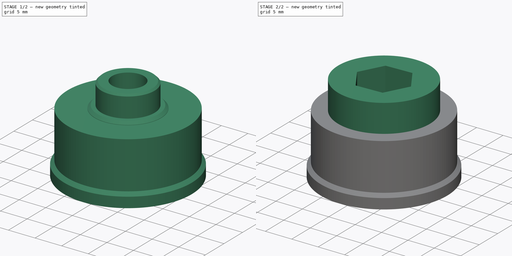
[diagram: build sequence overview — one tinted view per stage of 2, left to right]
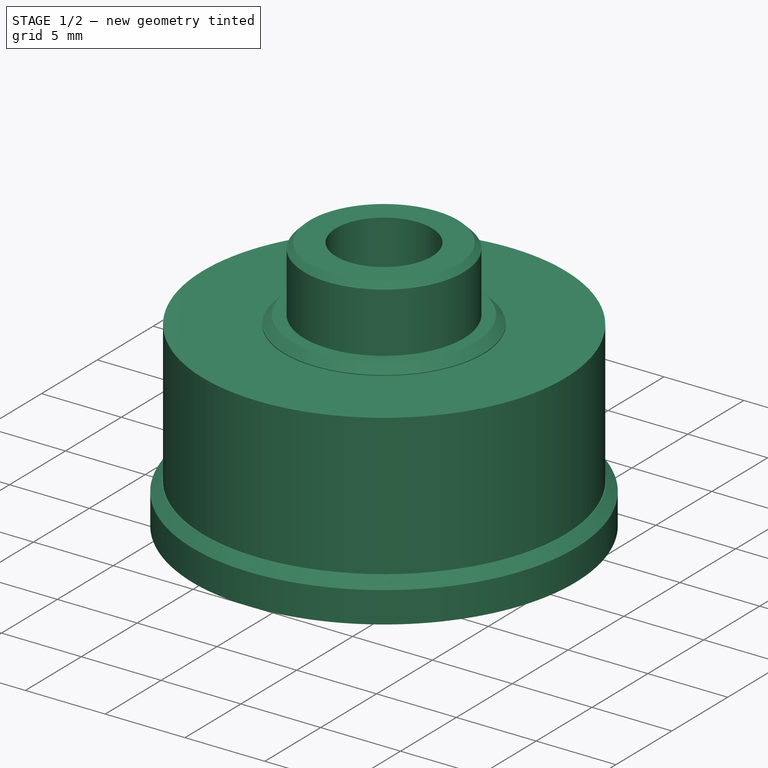
[diagram: stage 1 of 2 — iso view after this stage's code; geometry added in this stage tinted green]
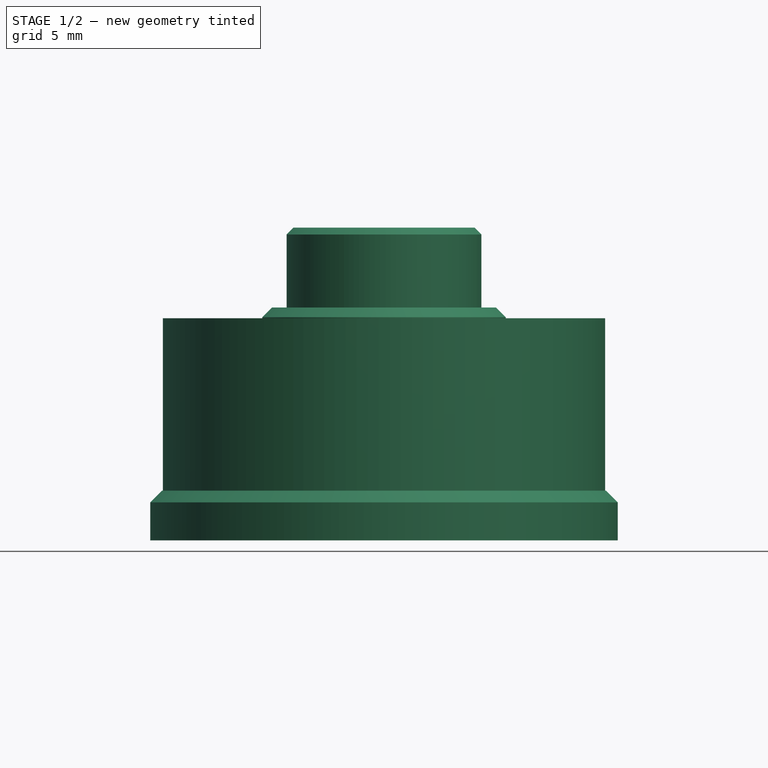
[diagram: stage 1 of 2 — front view after this stage's code; geometry added in this stage tinted green]
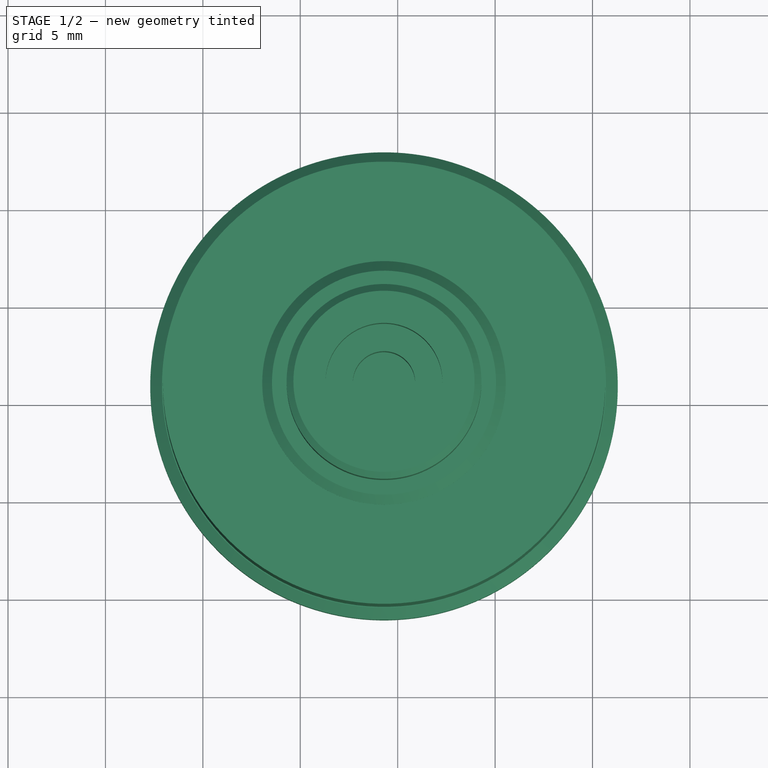
[diagram: stage 1 of 2 — top view after this stage's code; geometry added in this stage tinted green]
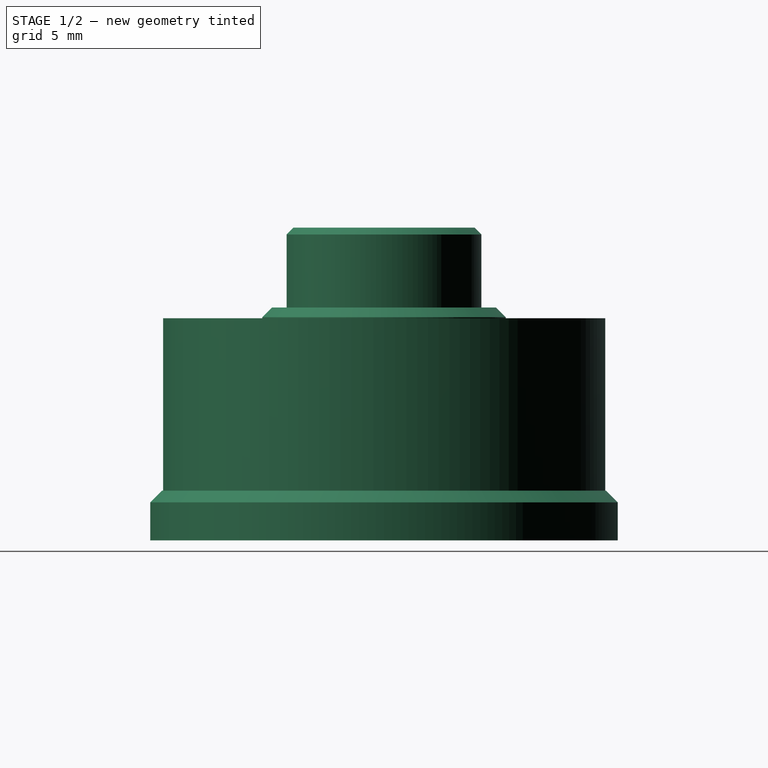
[diagram: stage 1 of 2 — right view after this stage's code; geometry added in this stage tinted green]
FCSTD DOCUMENT  (FreeCAD 0.20R29177 (Git))
Label: hexSocketPully
License: All rights reserved
LicenseURL: http://en.wikipedia.org/wiki/All_rights_reserved
objects: Sketcher::SketchObject×3, Part::Feature×2, PartDesign::Pad×2, Part::Refine×1, Spreadsheet::Sheet×1, PartDesign::FeatureBase×1, PartDesign::Pocket×1, PartDesign::Body×1
note: 14 computed .brp shape members not serialized (recipe doc carries the construction recipe); baked Part::Feature solids carry a one-line shape summary decoded from their .brp

FEATURE [Part::Feature] Pulley_1001
  shape: bbox 24 x 24 x 16.05 mm, 36164 faces, 0 solids (baked)
FEATURE [Part::Refine] Pulley_1001001
  Source = -> Pulley_1001
FEATURE [Spreadsheet::Sheet] Spreadsheet
  cells = A2=cx; B2(cx)=39.3; A3=cy; B3(cy)=80.95999999999999
FEATURE [Part::Feature] Pulley_1001001_solid  label="Pulley_1001001 (Solid)"
  shape: bbox 24 x 24 x 16.05 mm, 23378 faces (baked)
FEATURE [PartDesign::FeatureBase] BaseFeature
  BaseFeature = -> Pulley_1001001_solid
FEATURE [Sketcher::SketchObject] Sketch  label="SketchOuterWall"
  FullyConstrained = true
  MapMode = 5
  Placement = pos=(0,0,11.4) rot=(0,0,1;0rad)
  Support = -> [BaseFeature]
  expr: Constraints[1] = Spreadsheet.cx
  expr: Constraints[2] = Spreadsheet.cy
  sketch-geometry (2):
    g0: Circle CenterX=39.3 CenterY=80.96 CenterZ=0 NormalX=0 NormalY=0 NormalZ=1 AngleXU=0 Radius=9
    g1: Circle CenterX=39.3 CenterY=80.96 CenterZ=0 NormalX=0 NormalY=0 NormalZ=1 AngleXU=0 Radius=11.35
  constraints (5):
    c: Coincident(g1,g0)
    c: DistanceX(g-1,g0) = 39.3
    c: DistanceY(g-1,g0) = 80.96
    c: Radius(g0) = 9
    c: Radius(g1) = 11.35
FEATURE [PartDesign::Pad] Pad
  BaseFeature = -> BaseFeature
  Direction = (0,0,1)
  Length = 10
  Length2 = 10
  Profile = -> Sketch
  ReferenceAxis = -> Sketch [N_Axis]
  Reversed = true
  Type = 0
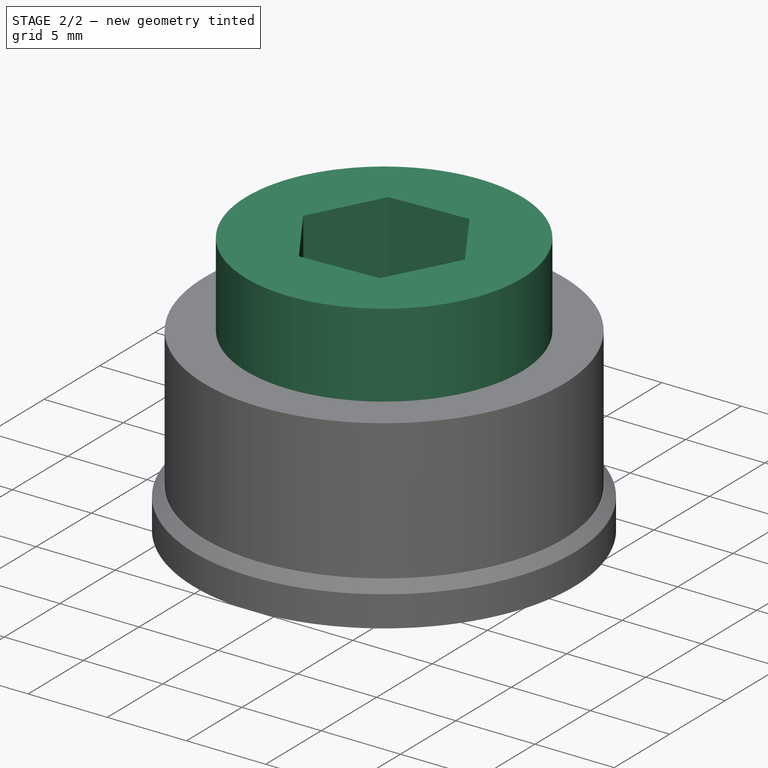
[diagram: stage 2 of 2 — iso view after this stage's code; geometry added in this stage tinted green]
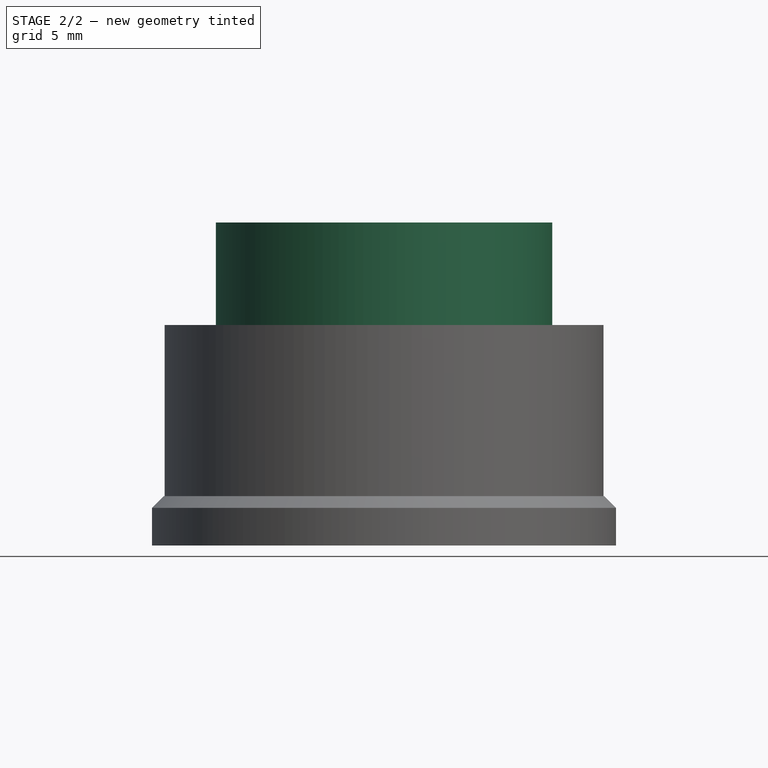
[diagram: stage 2 of 2 — front view after this stage's code; geometry added in this stage tinted green]
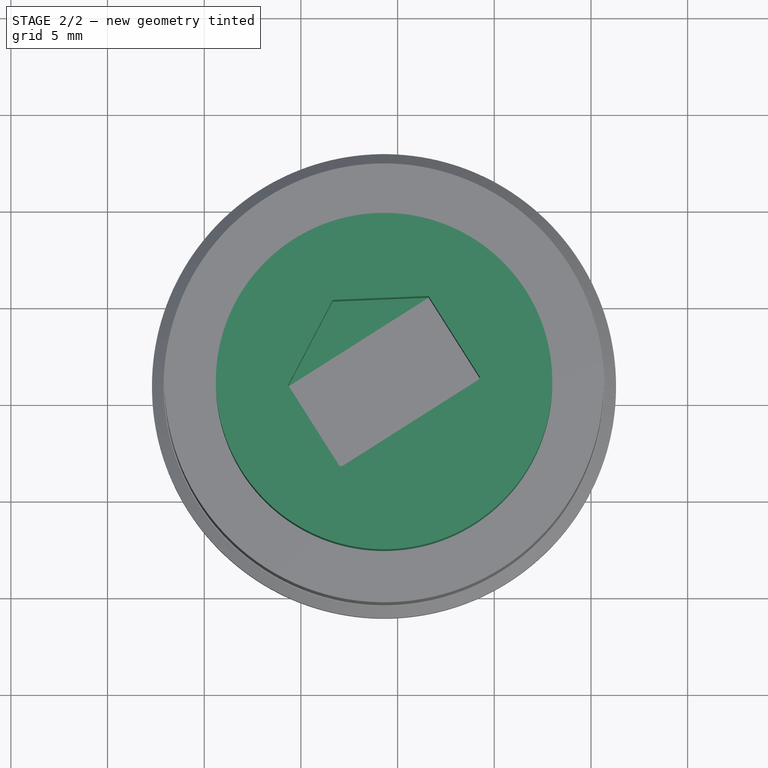
[diagram: stage 2 of 2 — top view after this stage's code; geometry added in this stage tinted green]
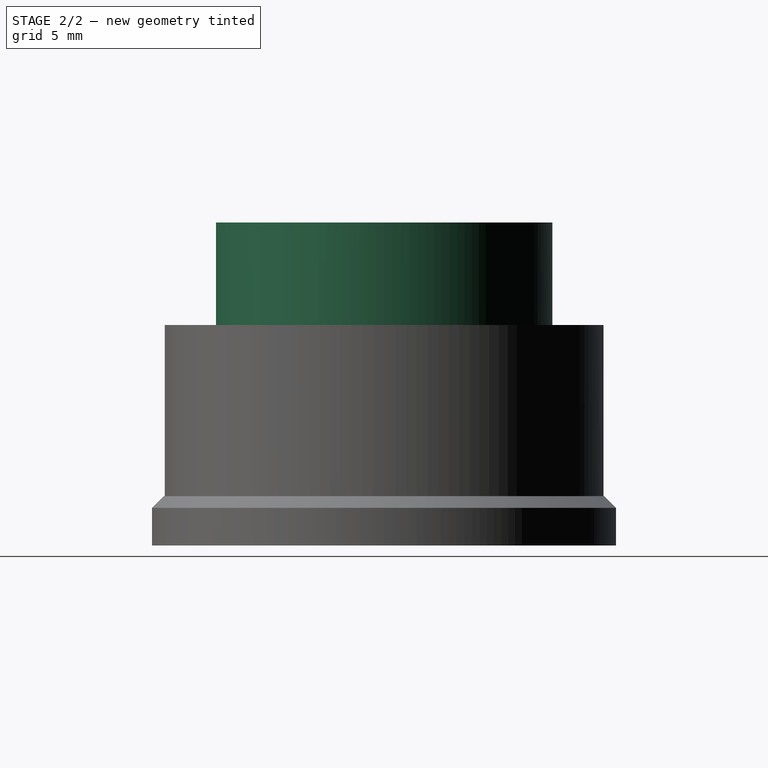
[diagram: stage 2 of 2 — right view after this stage's code; geometry added in this stage tinted green]
FEATURE [Sketcher::SketchObject] Sketch001  label="SketchSocketWall"
  FullyConstrained = true
  MapMode = 5
  Placement = pos=(0,0,9.7) rot=(0,0,1;0rad)
  Support = -> [Pad]
  expr: Constraints[0] = Spreadsheet.cx
  expr: Constraints[1] = Spreadsheet.cy
  sketch-geometry (1):
    g0: Circle CenterX=39.3 CenterY=80.96 CenterZ=0 NormalX=0 NormalY=0 NormalZ=1 AngleXU=0 Radius=8.7
  constraints (3):
    c: DistanceX(g-1,g0) = 39.3
    c: DistanceY(g-1,g0) = 80.96
    c: Radius(g0) = 8.7
FEATURE [PartDesign::Pad] Pad001
  BaseFeature = -> Pad
  Direction = (0,0,1)
  Length = 7
  Length2 = 10
  Profile = -> Sketch001
  ReferenceAxis = -> Sketch001 [N_Axis]
  Type = 0
FEATURE [Sketcher::SketchObject] Sketch002  label="SketchSocket"
  FullyConstrained = false
  MapMode = 5
  Placement = pos=(0,0,16.7) rot=(0,0,1;0rad)
  Support = -> [Pad001]
  expr: Constraints[18] = Spreadsheet.cx
  expr: Constraints[19] = Spreadsheet.cy
  sketch-geometry (7):
    g0: LineSegment StartX=41.9584 StartY=76.7666 StartZ=0 EndX=44.2607 EndY=81.1655 EndZ=0
    g1: LineSegment StartX=44.2607 StartY=81.1655 StartZ=0 EndX=41.6024 EndY=85.3589 EndZ=0
    g2: LineSegment StartX=41.6024 StartY=85.3589 StartZ=0 EndX=36.6416 EndY=85.1534 EndZ=0
    g3: LineSegment StartX=36.6416 StartY=85.1534 StartZ=0 EndX=34.3393 EndY=80.7545 EndZ=0
    g4: LineSegment StartX=34.3393 StartY=80.7545 StartZ=0 EndX=36.9976 EndY=76.5611 EndZ=0
    g5: LineSegment StartX=36.9976 StartY=76.5611 StartZ=0 EndX=41.9584 EndY=76.7666 EndZ=0
    g6: Circle CenterX=39.3 CenterY=80.96 CenterZ=0 NormalX=0 NormalY=0 NormalZ=1 AngleXU=0 Radius=4.965
  constraints (16):
    c: Coincident(g0,g1)
    c: Coincident(g1,g2)
    c: Coincident(g2,g3)
    c: Coincident(g3,g4)
    c: Coincident(g4,g5)
    c: Coincident(g5,g0)
    c: Equal(g0, g1-g5) x5
    c: PointOnObject(g0,g6)
    c: PointOnObject(g1,g6)
    c: PointOnObject(g2,g6)
    c: PointOnObject(g3,g6)
    c: PointOnObject(g4,g6)
    c: PointOnObject(g5,g6)
    c: Radius(g6) = 4.965
    c: DistanceX(g-1,g6) = 39.3
    c: DistanceY(g-1,g6) = 80.96
FEATURE [PartDesign::Pocket] Pocket
  BaseFeature = -> Pad001
  Direction = (0,0,-1)
  Length = 5
  Length2 = 5
  Profile = -> Sketch002
  ReferenceAxis = -> Sketch002 [N_Axis]
  Type = 0
FEATURE [PartDesign::Body] Body
  BaseFeature = -> Pulley_1001001_solid
  Group = -> [BaseFeature,Sketch,Pad,Sketch001,Pad001,Sketch002,Pocket]
  Origin = -> Origin
  Tip = -> Pocket
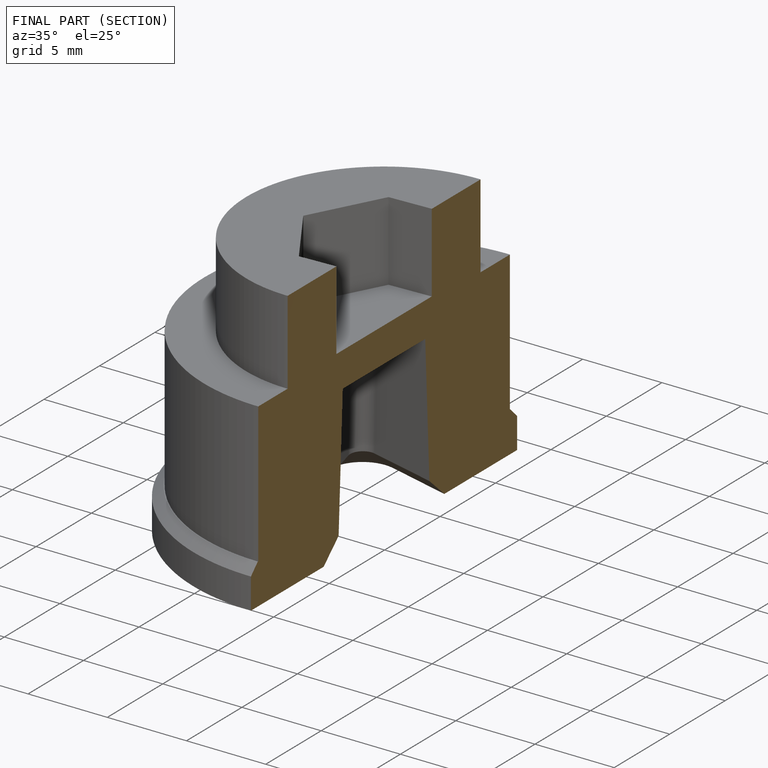
[diagram: finished part — half-section view (interior)]
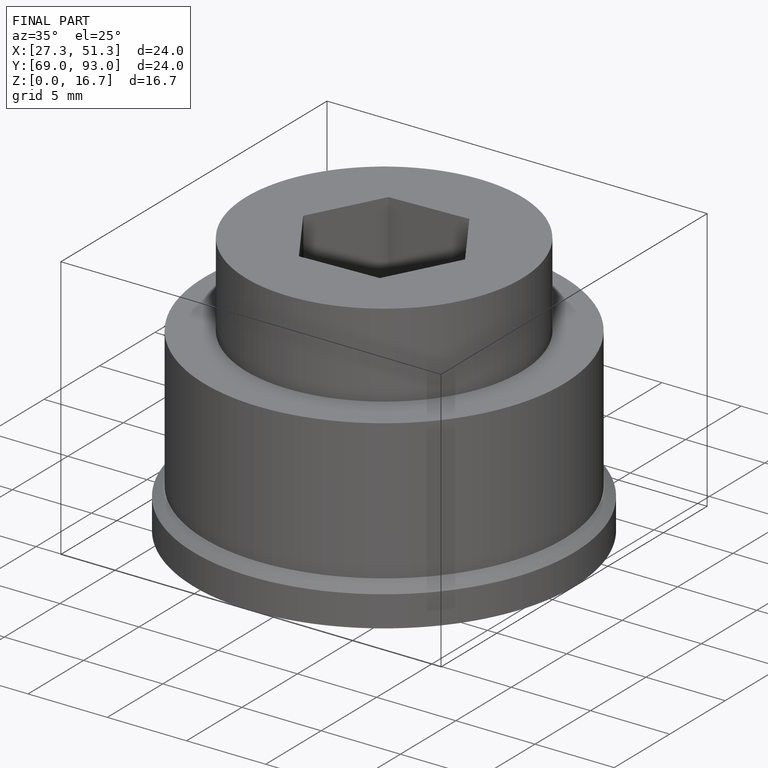
[diagram: finished part — iso view with bounding-box wireframe]
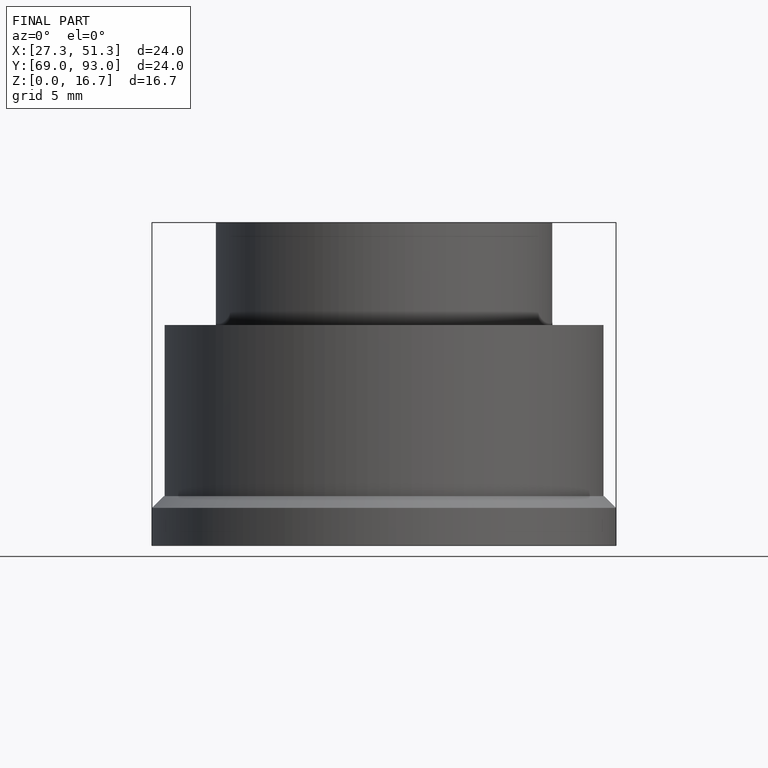
[diagram: finished part — front view with bounding-box wireframe]
